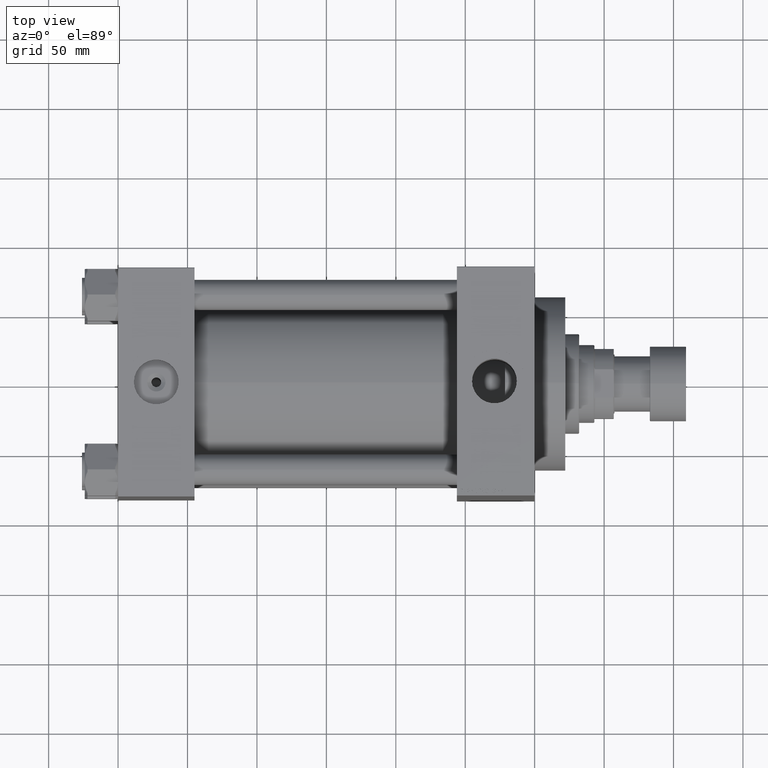
[diagram: clean part render]
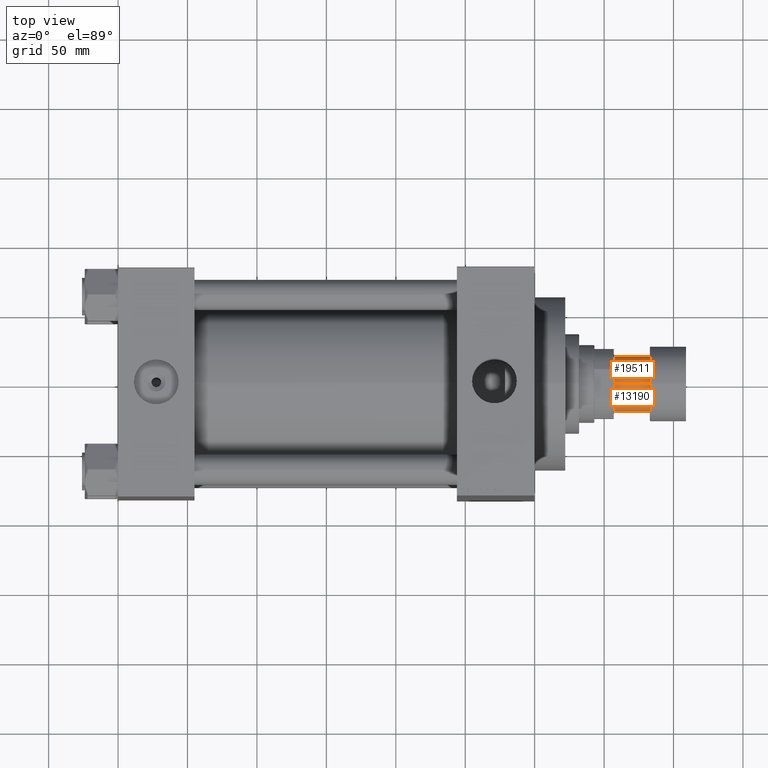
[diagram: same view with one multi-face feature highlighted, each face labeled with its STEP entity id]
A machine part, top view. The highlighted faces form ONE feature: a constant-radius fillet chain: 2 tangent blend faces with common blend radius 20 mm. The faces share edges in the B-rep.
Their STEP definitions:
[1] entity #13190 (Cylinder):
#709 = ORIENTED_EDGE ( 'NONE', *, *, #41197, .T. ) ;
#1298 = DIRECTION ( 'NONE',  ( -1.000000000000000000, 0.000000000000000000, 0.000000000000000000 ) ) ;
#4124 = CARTESIAN_POINT ( 'NONE',  ( -20.00000000000000000, 2.449293598294706513E-15, -51.50000000000000000 ) ) ;
#7309 = LINE ( 'NONE', #4124, #11910 ) ;
#7687 = VERTEX_POINT ( 'NONE', #36055 ) ;
#8587 = DIRECTION ( 'NONE',  ( 0.000000000000000000, 0.000000000000000000, -1.000000000000000000 ) ) ;
#9506 = DIRECTION ( 'NONE',  ( 1.000000000000000000, 0.000000000000000000, 0.000000000000000000 ) ) ;
#10054 = AXIS2_PLACEMENT_3D ( 'NONE', #31216, #8587, #1298 ) ;
#11910 = VECTOR ( 'NONE', #44550, 1000.000000000000000 ) ;
#13171 = CARTESIAN_POINT ( 'NONE',  ( 20.00000000000000000, 0.000000000000000000, -51.50000000000000000 ) ) ;
#13190 = ADVANCED_FACE ( 'NONE', ( #31897 ), #36284, .T. ) ;
#14393 = ORIENTED_EDGE ( 'NONE', *, *, #47837, .T. ) ;
#14466 = EDGE_CURVE ( 'NONE', #19256, #7687, #22508, .T. ) ;
#16822 = LINE ( 'NONE', #13171, #24369 ) ;
#19256 = VERTEX_POINT ( 'NONE', #47461 ) ;
#22421 = DIRECTION ( 'NONE',  ( -1.000000000000000000, 0.000000000000000000, 0.000000000000000000 ) ) ;
#22507 = ORIENTED_EDGE ( 'NONE', *, *, #14466, .F. ) ;
#22508 = CIRCLE ( 'NONE', #10054, 20.00000000000000000 ) ;
#24369 = VECTOR ( 'NONE', #45595, 1000.000000000000000 ) ;
#26606 = VERTEX_POINT ( 'NONE', #33181 ) ;
#28017 = CARTESIAN_POINT ( 'NONE',  ( 0.000000000000000000, 0.000000000000000000, -51.50000000000000000 ) ) ;
#28537 = ORIENTED_EDGE ( 'NONE', *, *, #40387, .F. ) ;
#28649 = CARTESIAN_POINT ( 'NONE',  ( -20.00000000000000000, 2.449293598294706513E-15, -26.00000000000000000 ) ) ;
#29462 = AXIS2_PLACEMENT_3D ( 'NONE', #28017, #42894, #9506 ) ;
#29728 = CARTESIAN_POINT ( 'NONE',  ( 0.000000000000000000, 0.000000000000000000, -26.00000000000000000 ) ) ;
#31216 = CARTESIAN_POINT ( 'NONE',  ( 0.000000000000000000, 0.000000000000000000, -51.50000000000000000 ) ) ;
#31897 = FACE_OUTER_BOUND ( 'NONE', #35436, .T. ) ;
#33181 = CARTESIAN_POINT ( 'NONE',  ( 20.00000000000000000, 0.000000000000000000, -26.00000000000000000 ) ) ;
#35436 = EDGE_LOOP ( 'NONE', ( #28537, #22507, #709, #14393 ) ) ;
#36055 = CARTESIAN_POINT ( 'NONE',  ( -20.00000000000000000, 2.449293598294706513E-15, -51.50000000000000000 ) ) ;
#36284 = CYLINDRICAL_SURFACE ( 'NONE', #29462, 20.00000000000000000 ) ;
#36824 = CIRCLE ( 'NONE', #37581, 20.00000000000000000 ) ;
#36922 = VERTEX_POINT ( 'NONE', #28649 ) ;
#37581 = AXIS2_PLACEMENT_3D ( 'NONE', #29728, #44353, #22421 ) ;
#40387 = EDGE_CURVE ( 'NONE', #7687, #36922, #7309, .T. ) ;
#41197 = EDGE_CURVE ( 'NONE', #19256, #26606, #16822, .T. ) ;
#42894 = DIRECTION ( 'NONE',  ( -0.000000000000000000, -0.000000000000000000, 1.000000000000000000 ) ) ;
#44353 = DIRECTION ( 'NONE',  ( 0.000000000000000000, 0.000000000000000000, -1.000000000000000000 ) ) ;
#44550 = DIRECTION ( 'NONE',  ( -0.000000000000000000, -0.000000000000000000, 1.000000000000000000 ) ) ;
#45595 = DIRECTION ( 'NONE',  ( -0.000000000000000000, -0.000000000000000000, 1.000000000000000000 ) ) ;
#47461 = CARTESIAN_POINT ( 'NONE',  ( 20.00000000000000000, 0.000000000000000000, -51.50000000000000000 ) ) ;
#47837 = EDGE_CURVE ( 'NONE', #26606, #36922, #36824, .T. ) ;
[2] entity #19511 (Cylinder):
#595 = EDGE_LOOP ( 'NONE', ( #36709, #47408, #35549, #26691 ) ) ;
#2683 = CARTESIAN_POINT ( 'NONE',  ( 0.000000000000000000, 0.000000000000000000, -51.50000000000000000 ) ) ;
#3974 = CIRCLE ( 'NONE', #31181, 20.00000000000000000 ) ;
#4124 = CARTESIAN_POINT ( 'NONE',  ( -20.00000000000000000, 2.449293598294706513E-15, -51.50000000000000000 ) ) ;
#5927 = DIRECTION ( 'NONE',  ( -0.000000000000000000, -0.000000000000000000, 1.000000000000000000 ) ) ;
#7309 = LINE ( 'NONE', #4124, #11910 ) ;
#7687 = VERTEX_POINT ( 'NONE', #36055 ) ;
#9738 = EDGE_CURVE ( 'NONE', #36922, #26606, #3974, .T. ) ;
#11910 = VECTOR ( 'NONE', #44550, 1000.000000000000000 ) ;
#13171 = CARTESIAN_POINT ( 'NONE',  ( 20.00000000000000000, 0.000000000000000000, -51.50000000000000000 ) ) ;
#16819 = DIRECTION ( 'NONE',  ( 0.000000000000000000, 0.000000000000000000, -1.000000000000000000 ) ) ;
#16822 = LINE ( 'NONE', #13171, #24369 ) ;
#17530 = DIRECTION ( 'NONE',  ( -1.000000000000000000, 0.000000000000000000, 0.000000000000000000 ) ) ;
#19256 = VERTEX_POINT ( 'NONE', #47461 ) ;
#19511 = ADVANCED_FACE ( 'NONE', ( #20291 ), #27603, .T. ) ;
#20291 = FACE_OUTER_BOUND ( 'NONE', #595, .T. ) ;
#21321 = AXIS2_PLACEMENT_3D ( 'NONE', #2683, #16819, #17530 ) ;
#21613 = DIRECTION ( 'NONE',  ( 0.000000000000000000, 0.000000000000000000, -1.000000000000000000 ) ) ;
#23650 = CIRCLE ( 'NONE', #21321, 20.00000000000000000 ) ;
#24369 = VECTOR ( 'NONE', #45595, 1000.000000000000000 ) ;
#26606 = VERTEX_POINT ( 'NONE', #33181 ) ;
#26691 = ORIENTED_EDGE ( 'NONE', *, *, #41197, .F. ) ;
#26943 = EDGE_CURVE ( 'NONE', #7687, #19256, #23650, .T. ) ;
#27603 = CYLINDRICAL_SURFACE ( 'NONE', #28698, 20.00000000000000000 ) ;
#28649 = CARTESIAN_POINT ( 'NONE',  ( -20.00000000000000000, 2.449293598294706513E-15, -26.00000000000000000 ) ) ;
#28698 = AXIS2_PLACEMENT_3D ( 'NONE', #39288, #5927, #46119 ) ;
#31181 = AXIS2_PLACEMENT_3D ( 'NONE', #47676, #21613, #32814 ) ;
#32814 = DIRECTION ( 'NONE',  ( -1.000000000000000000, 0.000000000000000000, 0.000000000000000000 ) ) ;
#33181 = CARTESIAN_POINT ( 'NONE',  ( 20.00000000000000000, 0.000000000000000000, -26.00000000000000000 ) ) ;
#35549 = ORIENTED_EDGE ( 'NONE', *, *, #9738, .T. ) ;
#36055 = CARTESIAN_POINT ( 'NONE',  ( -20.00000000000000000, 2.449293598294706513E-15, -51.50000000000000000 ) ) ;
#36709 = ORIENTED_EDGE ( 'NONE', *, *, #26943, .F. ) ;
#36922 = VERTEX_POINT ( 'NONE', #28649 ) ;
#39288 = CARTESIAN_POINT ( 'NONE',  ( 0.000000000000000000, 0.000000000000000000, -51.50000000000000000 ) ) ;
#40387 = EDGE_CURVE ( 'NONE', #7687, #36922, #7309, .T. ) ;
#41197 = EDGE_CURVE ( 'NONE', #19256, #26606, #16822, .T. ) ;
#44550 = DIRECTION ( 'NONE',  ( -0.000000000000000000, -0.000000000000000000, 1.000000000000000000 ) ) ;
#45595 = DIRECTION ( 'NONE',  ( -0.000000000000000000, -0.000000000000000000, 1.000000000000000000 ) ) ;
#46119 = DIRECTION ( 'NONE',  ( 1.000000000000000000, 0.000000000000000000, 0.000000000000000000 ) ) ;
#47408 = ORIENTED_EDGE ( 'NONE', *, *, #40387, .T. ) ;
#47461 = CARTESIAN_POINT ( 'NONE',  ( 20.00000000000000000, 0.000000000000000000, -51.50000000000000000 ) ) ;
#47676 = CARTESIAN_POINT ( 'NONE',  ( 0.000000000000000000, 0.000000000000000000, -26.00000000000000000 ) ) ;